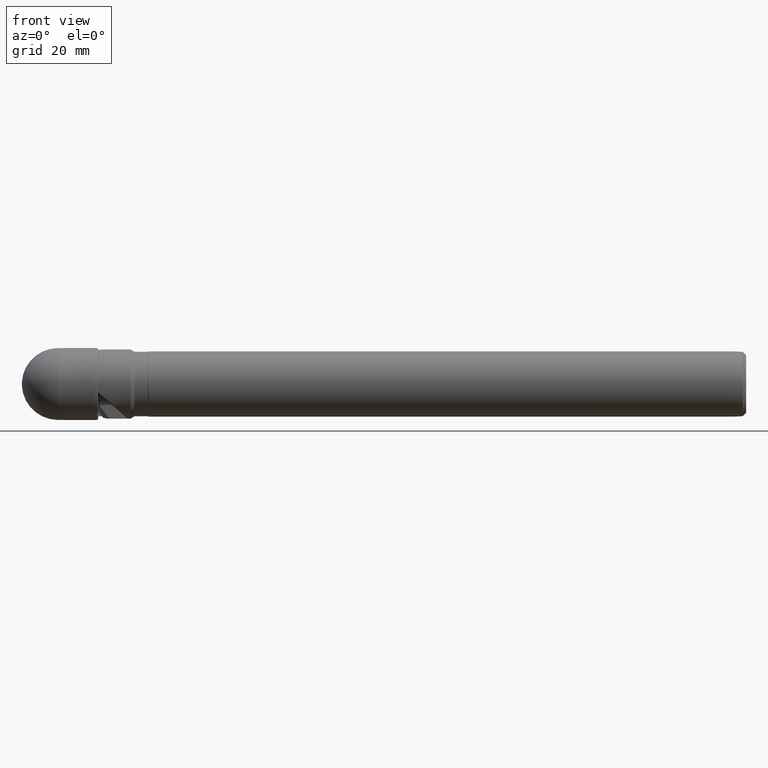
[diagram: clean part render]
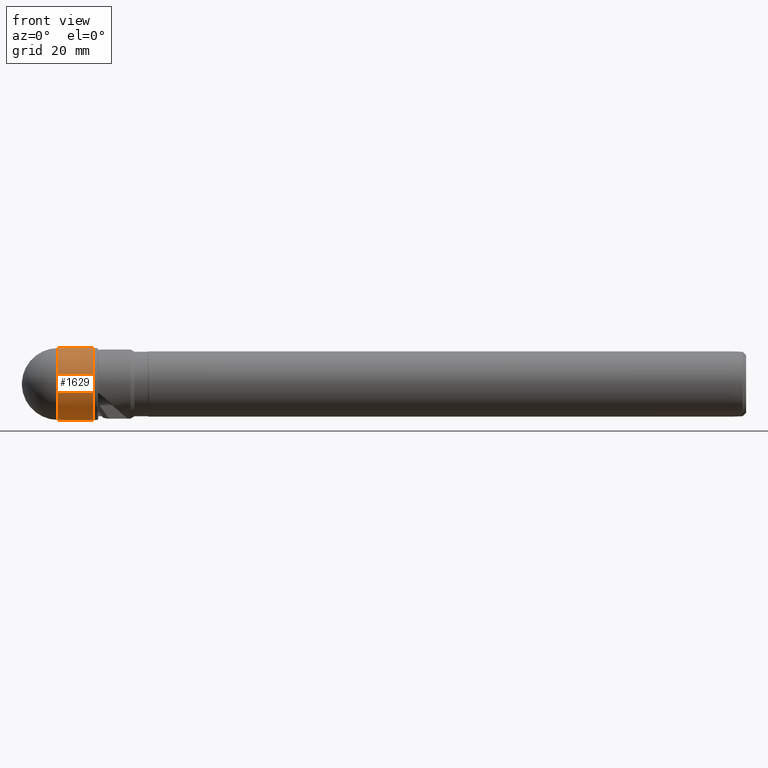
[diagram: same view with one face highlighted and labeled with its STEP entity id]
A machine part, front view. The second image highlights one B-rep face of the part: STEP entity #1629.
In plain terms, the highlighted conical surface has half-angle 0.193 deg.
Its self-contained STEP definition (entity closure, byte-faithful):
#178 = EDGE_CURVE ( 'NONE', #1737, #1018, #1093, .T. ) ;
#376 = ORIENTED_EDGE ( 'NONE', *, *, #178, .F. ) ;
#402 = CARTESIAN_POINT ( 'NONE',  ( 9.977918817990545364, 0.0000000000000000000, 0.0000000000000000000 ) ) ;
#694 = AXIS2_PLACEMENT_3D ( 'NONE', #402, #3330, #2138 ) ;
#731 = LINE ( 'NONE', #1914, #1837 ) ;
#1018 = VERTEX_POINT ( 'NONE', #2857 ) ;
#1083 = ORIENTED_EDGE ( 'NONE', *, *, #2061, .T. ) ;
#1093 = CIRCLE ( 'NONE', #2845, 9.917655915778976095 ) ;
#1131 = DIRECTION ( 'NONE',  ( 0.0000000000000000000, 0.0000000000000000000, 1.000000000000000000 ) ) ;
#1383 = DIRECTION ( 'NONE',  ( 0.9999943437071451280, 0.0000000000000000000, -0.003363413997101217124 ) ) ;
#1629 = ADVANCED_FACE ( 'NONE', ( #2711 ), #3677, .T. ) ;
#1644 = LINE ( 'NONE', #3683, #3546 ) ;
#1648 = CIRCLE ( 'NONE', #2156, 9.951121269423111926 ) ;
#1694 = CARTESIAN_POINT ( 'NONE',  ( 9.977918817990545364, 1.214562557230353628E-15, -9.917655915778977871 ) ) ;
#1700 = ORIENTED_EDGE ( 'NONE', *, *, #3126, .F. ) ;
#1737 = VERTEX_POINT ( 'NONE', #1694 ) ;
#1837 = VECTOR ( 'NONE', #1383, 1000.000000000000114 ) ;
#1914 = CARTESIAN_POINT ( 'NONE',  ( 9.977918817990545364, 0.0000000000000000000, -9.917655915778976095 ) ) ;
#2008 = EDGE_CURVE ( 'NONE', #1737, #2303, #731, .T. ) ;
#2061 = EDGE_CURVE ( 'NONE', #2303, #3440, #1648, .T. ) ;
#2094 = CARTESIAN_POINT ( 'NONE',  ( 19.92767950256220999, 1.218660881052615963E-15, 9.951121269423111926 ) ) ;
#2138 = DIRECTION ( 'NONE',  ( 0.0000000000000000000, 0.0000000000000000000, -1.000000000000000000 ) ) ;
#2156 = AXIS2_PLACEMENT_3D ( 'NONE', #3095, #2536, #3121 ) ;
#2303 = VERTEX_POINT ( 'NONE', #3734 ) ;
#2502 = EDGE_LOOP ( 'NONE', ( #1700, #376, #2777, #1083 ) ) ;
#2536 = DIRECTION ( 'NONE',  ( -1.000000000000000000, -0.0000000000000000000, -0.0000000000000000000 ) ) ;
#2557 = CARTESIAN_POINT ( 'NONE',  ( 9.977918817990545364, 0.0000000000000000000, 0.0000000000000000000 ) ) ;
#2711 = FACE_OUTER_BOUND ( 'NONE', #2502, .T. ) ;
#2777 = ORIENTED_EDGE ( 'NONE', *, *, #2008, .T. ) ;
#2845 = AXIS2_PLACEMENT_3D ( 'NONE', #2557, #3738, #1131 ) ;
#2857 = CARTESIAN_POINT ( 'NONE',  ( 9.977918817990545364, 0.0000000000000000000, 9.917655915778977871 ) ) ;
#3095 = CARTESIAN_POINT ( 'NONE',  ( 19.92767950256220999, 0.0000000000000000000, 0.0000000000000000000 ) ) ;
#3121 = DIRECTION ( 'NONE',  ( 0.0000000000000000000, 0.0000000000000000000, 1.000000000000000000 ) ) ;
#3126 = EDGE_CURVE ( 'NONE', #1018, #3440, #1644, .T. ) ;
#3330 = DIRECTION ( 'NONE',  ( 1.000000000000000000, 0.0000000000000000000, 0.0000000000000000000 ) ) ;
#3440 = VERTEX_POINT ( 'NONE', #2094 ) ;
#3546 = VECTOR ( 'NONE', #3705, 1000.000000000000114 ) ;
#3677 = CONICAL_SURFACE ( 'NONE', #694, 9.917655915778976095, 0.003363420338600418315 ) ;
#3683 = CARTESIAN_POINT ( 'NONE',  ( 9.977918817990545364, 1.214562557230353431E-15, 9.917655915778976095 ) ) ;
#3705 = DIRECTION ( 'NONE',  ( 0.9999943437071451280, 4.118994185757410927E-19, 0.003363413997101217124 ) ) ;
#3734 = CARTESIAN_POINT ( 'NONE',  ( 19.92767950256220999, 0.0000000000000000000, -9.951121269423111926 ) ) ;
#3738 = DIRECTION ( 'NONE',  ( -1.000000000000000000, -0.0000000000000000000, -0.0000000000000000000 ) ) ;